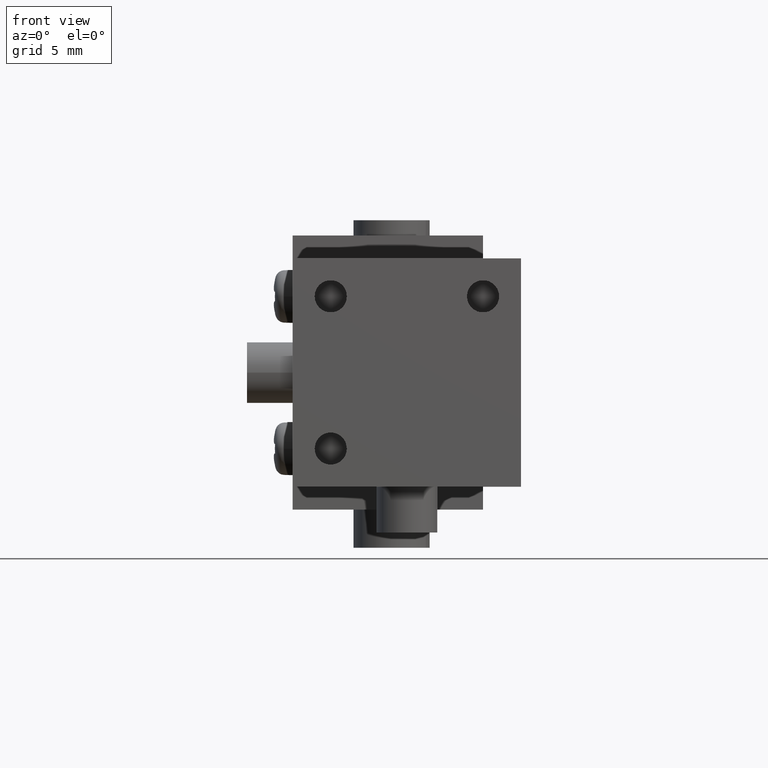
[diagram: clean part render]
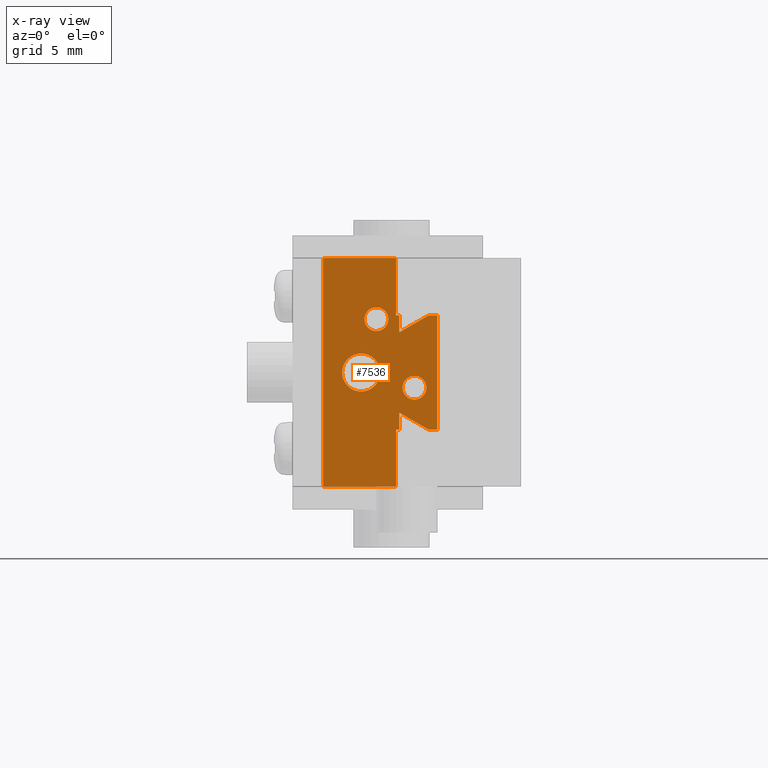
[diagram: x-ray — body ghosted, one internal face saturated and labeled with its STEP entity id]
A machine part, front view, then the same camera in x-ray: the body is ghosted and one INTERNAL B-rep face — a face not visible from any outside direction — is saturated and labeled: STEP entity #7536.
In plain terms, the highlighted planar face has unit normal (-0, 1, -0).
Its self-contained STEP definition (entity closure, byte-faithful):
#95 = CARTESIAN_POINT ( 'NONE',  ( -4.400000000000000355, 1.000000000000000000, 6.000000000000000000 ) ) ;
#125 = FACE_BOUND ( 'NONE', #24091, .T. ) ;
#191 = CIRCLE ( 'NONE', #6037, 0.7835000000000003073 ) ;
#254 = ORIENTED_EDGE ( 'NONE', *, *, #9349, .T. ) ;
#387 = PLANE ( 'NONE',  #23105 ) ;
#539 = EDGE_LOOP ( 'NONE', ( #12244, #1239 ) ) ;
#883 = VERTEX_POINT ( 'NONE', #24081 ) ;
#957 = DIRECTION ( 'NONE',  ( 0.000000000000000000, 0.000000000000000000, 1.000000000000000000 ) ) ;
#1214 = CARTESIAN_POINT ( 'NONE',  ( -4.400000000000000355, -3.750000000000000000, 4.799999999999999822 ) ) ;
#1239 = ORIENTED_EDGE ( 'NONE', *, *, #22918, .T. ) ;
#1428 = CARTESIAN_POINT ( 'NONE',  ( -4.400000000000000355, -7.500000000000000000, 4.799999999999999822 ) ) ;
#1512 = ORIENTED_EDGE ( 'NONE', *, *, #24629, .T. ) ;
#1524 = VECTOR ( 'NONE', #16123, 1000.000000000000000 ) ;
#1585 = CARTESIAN_POINT ( 'NONE',  ( -4.400000000000000355, -3.750000000000000000, 6.922576396401449728 ) ) ;
#1698 = LINE ( 'NONE', #2924, #19301 ) ;
#2098 = CARTESIAN_POINT ( 'NONE',  ( -4.400000000000000355, 3.750000000000000000, 5.000000000000000000 ) ) ;
#2362 = CARTESIAN_POINT ( 'NONE',  ( -4.400000000000000355, 1.000000000000000000, 6.783500000000000085 ) ) ;
#2679 = VECTOR ( 'NONE', #13470, 1000.000000000000000 ) ;
#2689 = DIRECTION ( 'NONE',  ( 1.000000000000000000, 0.000000000000000000, 0.000000000000000000 ) ) ;
#2741 = EDGE_CURVE ( 'NONE', #23447, #23476, #21122, .T. ) ;
#2761 = VERTEX_POINT ( 'NONE', #11014 ) ;
#2834 = DIRECTION ( 'NONE',  ( 4.000804000000002582E-16, -0.5000000000000003331, -0.8660254037844383745 ) ) ;
#2924 = CARTESIAN_POINT ( 'NONE',  ( -4.400000000000000355, -3.750000000000000000, 5.000000000000000000 ) ) ;
#2989 = ORIENTED_EDGE ( 'NONE', *, *, #13187, .T. ) ;
#3048 = CARTESIAN_POINT ( 'NONE',  ( -4.400000000000000355, -3.500000000000000000, 2.716500000000000359 ) ) ;
#3366 = EDGE_CURVE ( 'NONE', #24474, #25820, #22412, .T. ) ;
#3664 = CIRCLE ( 'NONE', #25823, 0.7834999999999998632 ) ;
#3692 = CARTESIAN_POINT ( 'NONE',  ( -4.400000000000000355, -3.750000000000000000, 4.799999999999999822 ) ) ;
#3751 = CARTESIAN_POINT ( 'NONE',  ( -4.400000000000000355, -8.091174999999998795E-16, 3.750000000000000000 ) ) ;
#3780 = VERTEX_POINT ( 'NONE', #14307 ) ;
#3819 = ORIENTED_EDGE ( 'NONE', *, *, #19726, .T. ) ;
#3853 = CARTESIAN_POINT ( 'NONE',  ( -4.400000000000000355, 3.750000000000000000, 5.000000000000000000 ) ) ;
#3963 = LINE ( 'NONE', #24255, #1524 ) ;
#4100 = EDGE_CURVE ( 'NONE', #15903, #3780, #3963, .T. ) ;
#4203 = DIRECTION ( 'NONE',  ( -1.000000000000000000, 0.000000000000000000, 0.000000000000000000 ) ) ;
#4271 = ORIENTED_EDGE ( 'NONE', *, *, #2741, .T. ) ;
#4417 = AXIS2_PLACEMENT_3D ( 'NONE', #11402, #11277, #17559 ) ;
#4483 = VERTEX_POINT ( 'NONE', #2098 ) ;
#4512 = VERTEX_POINT ( 'NONE', #23963 ) ;
#4528 = DIRECTION ( 'NONE',  ( 4.000803999999999130E-16, -0.4999999999999998890, 0.8660254037844387076 ) ) ;
#4597 = EDGE_LOOP ( 'NONE', ( #5854, #7934, #23579, #1512, #25822, #4689, #13957, #18647, #11149, #254, #19479, #7674, #3819, #2989 ) ) ;
#4689 = ORIENTED_EDGE ( 'NONE', *, *, #16033, .T. ) ;
#4734 = CARTESIAN_POINT ( 'NONE',  ( -4.400000000000000355, -3.750000000000000000, 7.500000000000000000 ) ) ;
#4777 = AXIS2_PLACEMENT_3D ( 'NONE', #95, #16442, #10432 ) ;
#4908 = LINE ( 'NONE', #1214, #14408 ) ;
#5068 = VERTEX_POINT ( 'NONE', #24195 ) ;
#5608 = CIRCLE ( 'NONE', #4777, 0.7835000000000003073 ) ;
#5682 = DIRECTION ( 'NONE',  ( 0.000000000000000000, 0.000000000000000000, -1.000000000000000000 ) ) ;
#5786 = VECTOR ( 'NONE', #957, 1000.000000000000000 ) ;
#5854 = ORIENTED_EDGE ( 'NONE', *, *, #14746, .T. ) ;
#5885 = CARTESIAN_POINT ( 'NONE',  ( -4.400000000000000355, 3.750000000000000000, 4.799999999999999822 ) ) ;
#5985 = CARTESIAN_POINT ( 'NONE',  ( -4.400000000000000355, -1.115269149999999834E-15, 1.250000000000000000 ) ) ;
#6037 = AXIS2_PLACEMENT_3D ( 'NONE', #7579, #23956, #15563 ) ;
#6156 = LINE ( 'NONE', #5885, #11095 ) ;
#6355 = ORIENTED_EDGE ( 'NONE', *, *, #13671, .T. ) ;
#6465 = LINE ( 'NONE', #14457, #22466 ) ;
#6616 = DIRECTION ( 'NONE',  ( 0.000000000000000000, 0.000000000000000000, 1.000000000000000000 ) ) ;
#6997 = DIRECTION ( 'NONE',  ( 0.000000000000000000, 0.000000000000000000, 1.000000000000000000 ) ) ;
#7260 = VERTEX_POINT ( 'NONE', #4734 ) ;
#7433 = DIRECTION ( 'NONE',  ( 0.000000000000000000, -1.000000000000000000, 0.000000000000000000 ) ) ;
#7536 = ADVANCED_FACE ( 'NONE', ( #125, #18342, #22142, #24229 ), #387, .T. ) ;
#7579 = CARTESIAN_POINT ( 'NONE',  ( -4.400000000000000355, 1.000000000000000000, 6.000000000000000000 ) ) ;
#7596 = CARTESIAN_POINT ( 'NONE',  ( -4.400000000000000355, 3.750000000000000000, 4.799999999999999822 ) ) ;
#7674 = ORIENTED_EDGE ( 'NONE', *, *, #10629, .T. ) ;
#7688 = VECTOR ( 'NONE', #20350, 1000.000000000000000 ) ;
#7934 = ORIENTED_EDGE ( 'NONE', *, *, #18425, .T. ) ;
#8036 = LINE ( 'NONE', #3853, #22575 ) ;
#8204 = VECTOR ( 'NONE', #2834, 1000.000000000000114 ) ;
#8887 = EDGE_CURVE ( 'NONE', #14619, #10111, #5608, .T. ) ;
#8935 = VERTEX_POINT ( 'NONE', #18550 ) ;
#8947 = ORIENTED_EDGE ( 'NONE', *, *, #18085, .T. ) ;
#9349 = EDGE_CURVE ( 'NONE', #8935, #5068, #18013, .T. ) ;
#9632 = EDGE_CURVE ( 'NONE', #22596, #2761, #17706, .T. ) ;
#9979 = VERTEX_POINT ( 'NONE', #16889 ) ;
#10111 = VERTEX_POINT ( 'NONE', #2362 ) ;
#10184 = VECTOR ( 'NONE', #11807, 1000.000000000000000 ) ;
#10305 = VERTEX_POINT ( 'NONE', #16473 ) ;
#10432 = DIRECTION ( 'NONE',  ( 0.000000000000000000, 0.000000000000000000, 1.000000000000000000 ) ) ;
#10493 = CARTESIAN_POINT ( 'NONE',  ( -4.400000000000000355, -3.500000000000000000, 3.500000000000000000 ) ) ;
#10629 = EDGE_CURVE ( 'NONE', #10980, #9979, #4908, .T. ) ;
#10704 = LINE ( 'NONE', #18703, #11355 ) ;
#10929 = CARTESIAN_POINT ( 'NONE',  ( -4.400000000000000355, 3.750000000000000000, 6.922576396401460386 ) ) ;
#10962 = VECTOR ( 'NONE', #7433, 1000.000000000000000 ) ;
#10975 = EDGE_LOOP ( 'NONE', ( #4271, #6355 ) ) ;
#10980 = VERTEX_POINT ( 'NONE', #3692 ) ;
#10998 = LINE ( 'NONE', #18996, #2679 ) ;
#11014 = CARTESIAN_POINT ( 'NONE',  ( -4.400000000000000355, 3.750000000000000000, 6.922576396401460386 ) ) ;
#11095 = VECTOR ( 'NONE', #14132, 1000.000000000000000 ) ;
#11149 = ORIENTED_EDGE ( 'NONE', *, *, #20207, .T. ) ;
#11219 = CARTESIAN_POINT ( 'NONE',  ( -4.400000000000000355, 7.500000000000000000, 0.000000000000000000 ) ) ;
#11277 = DIRECTION ( 'NONE',  ( 1.000000000000000000, 0.000000000000000000, 0.000000000000000000 ) ) ;
#11355 = VECTOR ( 'NONE', #16723, 1000.000000000000000 ) ;
#11402 = CARTESIAN_POINT ( 'NONE',  ( -4.400000000000000355, -3.500000000000000000, 3.500000000000000000 ) ) ;
#11807 = DIRECTION ( 'NONE',  ( 0.000000000000000000, 0.000000000000000000, -1.000000000000000000 ) ) ;
#12206 = CIRCLE ( 'NONE', #13439, 1.249999999999999778 ) ;
#12244 = ORIENTED_EDGE ( 'NONE', *, *, #8887, .T. ) ;
#13007 = LINE ( 'NONE', #10929, #8204 ) ;
#13187 = EDGE_CURVE ( 'NONE', #883, #10305, #6465, .T. ) ;
#13439 = AXIS2_PLACEMENT_3D ( 'NONE', #14442, #16666, #20459 ) ;
#13470 = DIRECTION ( 'NONE',  ( 0.000000000000000000, 1.000000000000000000, 0.000000000000000000 ) ) ;
#13492 = CARTESIAN_POINT ( 'NONE',  ( -4.400000000000000355, -3.500000000000000000, 4.283500000000000085 ) ) ;
#13671 = EDGE_CURVE ( 'NONE', #23476, #23447, #3664, .T. ) ;
#13957 = ORIENTED_EDGE ( 'NONE', *, *, #24001, .T. ) ;
#14033 = VECTOR ( 'NONE', #17259, 1000.000000000000000 ) ;
#14065 = CARTESIAN_POINT ( 'NONE',  ( -4.400000000000000355, -7.500000000000000000, 0.000000000000000000 ) ) ;
#14132 = DIRECTION ( 'NONE',  ( 0.000000000000000000, 1.000000000000000000, 0.000000000000000000 ) ) ;
#14307 = CARTESIAN_POINT ( 'NONE',  ( -4.400000000000000355, 7.500000000000000000, 4.799999999999999822 ) ) ;
#14408 = VECTOR ( 'NONE', #6997, 1000.000000000000000 ) ;
#14442 = CARTESIAN_POINT ( 'NONE',  ( -4.400000000000000355, -1.110222999999999976E-15, 2.500000000000000000 ) ) ;
#14457 = CARTESIAN_POINT ( 'NONE',  ( -4.400000000000000355, -2.640000000000000124, 5.000000000000000000 ) ) ;
#14596 = CARTESIAN_POINT ( 'NONE',  ( -4.400000000000000355, 1.000000000000000000, 5.216499999999999915 ) ) ;
#14619 = VERTEX_POINT ( 'NONE', #14596 ) ;
#14746 = EDGE_CURVE ( 'NONE', #10305, #7260, #18905, .T. ) ;
#15064 = CARTESIAN_POINT ( 'NONE',  ( -4.400000000000000355, 3.750000000000000000, 7.500000000000000000 ) ) ;
#15311 = DIRECTION ( 'NONE',  ( 0.000000000000000000, 1.000000000000000000, 0.000000000000000000 ) ) ;
#15563 = DIRECTION ( 'NONE',  ( 0.000000000000000000, 0.000000000000000000, 1.000000000000000000 ) ) ;
#15903 = VERTEX_POINT ( 'NONE', #19425 ) ;
#16033 = EDGE_CURVE ( 'NONE', #4483, #16220, #8036, .T. ) ;
#16123 = DIRECTION ( 'NONE',  ( 0.000000000000000000, 0.000000000000000000, 1.000000000000000000 ) ) ;
#16220 = VERTEX_POINT ( 'NONE', #7596 ) ;
#16442 = DIRECTION ( 'NONE',  ( 1.000000000000000000, 0.000000000000000000, 0.000000000000000000 ) ) ;
#16473 = CARTESIAN_POINT ( 'NONE',  ( -4.400000000000000355, -3.750000000000000000, 6.922576396401449728 ) ) ;
#16517 = DIRECTION ( 'NONE',  ( 0.000000000000000000, 0.000000000000000000, 1.000000000000000000 ) ) ;
#16666 = DIRECTION ( 'NONE',  ( 1.000000000000000000, 0.000000000000000000, 0.000000000000000000 ) ) ;
#16723 = DIRECTION ( 'NONE',  ( 0.000000000000000000, 1.000000000000000000, 0.000000000000000000 ) ) ;
#16889 = CARTESIAN_POINT ( 'NONE',  ( -4.400000000000000355, -3.750000000000000000, 5.000000000000000000 ) ) ;
#17259 = DIRECTION ( 'NONE',  ( 0.000000000000000000, 1.000000000000000000, 0.000000000000000000 ) ) ;
#17559 = DIRECTION ( 'NONE',  ( 0.000000000000000000, 0.000000000000000000, 1.000000000000000000 ) ) ;
#17706 = LINE ( 'NONE', #23472, #10184 ) ;
#18013 = LINE ( 'NONE', #14065, #7688 ) ;
#18085 = EDGE_CURVE ( 'NONE', #25820, #24474, #12206, .T. ) ;
#18342 = FACE_BOUND ( 'NONE', #539, .T. ) ;
#18425 = EDGE_CURVE ( 'NONE', #7260, #22596, #10704, .T. ) ;
#18550 = CARTESIAN_POINT ( 'NONE',  ( -4.400000000000000355, -7.500000000000000000, 0.000000000000000000 ) ) ;
#18647 = ORIENTED_EDGE ( 'NONE', *, *, #4100, .F. ) ;
#18703 = CARTESIAN_POINT ( 'NONE',  ( -4.400000000000000355, -3.750000000000000000, 7.500000000000000000 ) ) ;
#18905 = LINE ( 'NONE', #1585, #5786 ) ;
#18996 = CARTESIAN_POINT ( 'NONE',  ( -4.400000000000000355, 2.640000000000000124, 5.000000000000000000 ) ) ;
#19301 = VECTOR ( 'NONE', #15311, 1000.000000000000000 ) ;
#19332 = LINE ( 'NONE', #11219, #10962 ) ;
#19425 = CARTESIAN_POINT ( 'NONE',  ( -4.400000000000000355, 7.500000000000000000, 0.000000000000000000 ) ) ;
#19479 = ORIENTED_EDGE ( 'NONE', *, *, #23832, .T. ) ;
#19488 = AXIS2_PLACEMENT_3D ( 'NONE', #22477, #2689, #6616 ) ;
#19726 = EDGE_CURVE ( 'NONE', #9979, #883, #1698, .T. ) ;
#20207 = EDGE_CURVE ( 'NONE', #15903, #8935, #19332, .T. ) ;
#20350 = DIRECTION ( 'NONE',  ( 0.000000000000000000, 0.000000000000000000, 1.000000000000000000 ) ) ;
#20412 = DIRECTION ( 'NONE',  ( 0.000000000000000000, 0.000000000000000000, 1.000000000000000000 ) ) ;
#20459 = DIRECTION ( 'NONE',  ( 0.000000000000000000, 0.000000000000000000, 1.000000000000000000 ) ) ;
#21122 = CIRCLE ( 'NONE', #4417, 0.7834999999999998632 ) ;
#21206 = LINE ( 'NONE', #1428, #14033 ) ;
#21504 = ORIENTED_EDGE ( 'NONE', *, *, #3366, .T. ) ;
#22142 = FACE_BOUND ( 'NONE', #10975, .T. ) ;
#22257 = CARTESIAN_POINT ( 'NONE',  ( -4.400000000000000355, -7.500000000000000000, 0.000000000000000000 ) ) ;
#22412 = CIRCLE ( 'NONE', #19488, 1.249999999999999778 ) ;
#22466 = VECTOR ( 'NONE', #4528, 1000.000000000000000 ) ;
#22477 = CARTESIAN_POINT ( 'NONE',  ( -4.400000000000000355, -1.110222999999999976E-15, 2.500000000000000000 ) ) ;
#22575 = VECTOR ( 'NONE', #5682, 1000.000000000000000 ) ;
#22584 = EDGE_CURVE ( 'NONE', #4512, #4483, #10998, .T. ) ;
#22596 = VERTEX_POINT ( 'NONE', #15064 ) ;
#22678 = DIRECTION ( 'NONE',  ( 1.000000000000000000, 0.000000000000000000, 0.000000000000000000 ) ) ;
#22918 = EDGE_CURVE ( 'NONE', #10111, #14619, #191, .T. ) ;
#23105 = AXIS2_PLACEMENT_3D ( 'NONE', #22257, #4203, #20412 ) ;
#23447 = VERTEX_POINT ( 'NONE', #3048 ) ;
#23472 = CARTESIAN_POINT ( 'NONE',  ( -4.400000000000000355, 3.750000000000000000, 7.500000000000000000 ) ) ;
#23476 = VERTEX_POINT ( 'NONE', #13492 ) ;
#23579 = ORIENTED_EDGE ( 'NONE', *, *, #9632, .T. ) ;
#23832 = EDGE_CURVE ( 'NONE', #5068, #10980, #21206, .T. ) ;
#23956 = DIRECTION ( 'NONE',  ( 1.000000000000000000, 0.000000000000000000, 0.000000000000000000 ) ) ;
#23963 = CARTESIAN_POINT ( 'NONE',  ( -4.400000000000000355, 2.640000000000000124, 5.000000000000000000 ) ) ;
#24001 = EDGE_CURVE ( 'NONE', #16220, #3780, #6156, .T. ) ;
#24081 = CARTESIAN_POINT ( 'NONE',  ( -4.400000000000000355, -2.640000000000000124, 5.000000000000000000 ) ) ;
#24091 = EDGE_LOOP ( 'NONE', ( #21504, #8947 ) ) ;
#24195 = CARTESIAN_POINT ( 'NONE',  ( -4.400000000000000355, -7.500000000000000000, 4.799999999999999822 ) ) ;
#24229 = FACE_OUTER_BOUND ( 'NONE', #4597, .T. ) ;
#24255 = CARTESIAN_POINT ( 'NONE',  ( -4.400000000000000355, 7.500000000000000000, 0.000000000000000000 ) ) ;
#24474 = VERTEX_POINT ( 'NONE', #5985 ) ;
#24629 = EDGE_CURVE ( 'NONE', #2761, #4512, #13007, .T. ) ;
#25820 = VERTEX_POINT ( 'NONE', #3751 ) ;
#25822 = ORIENTED_EDGE ( 'NONE', *, *, #22584, .T. ) ;
#25823 = AXIS2_PLACEMENT_3D ( 'NONE', #10493, #22678, #16517 ) ;